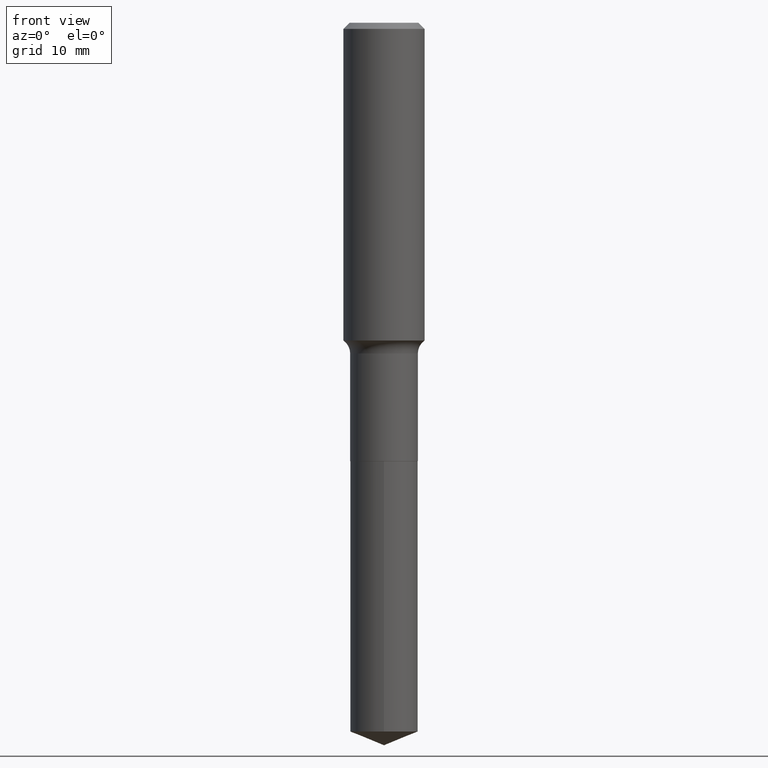
[diagram: clean part render]
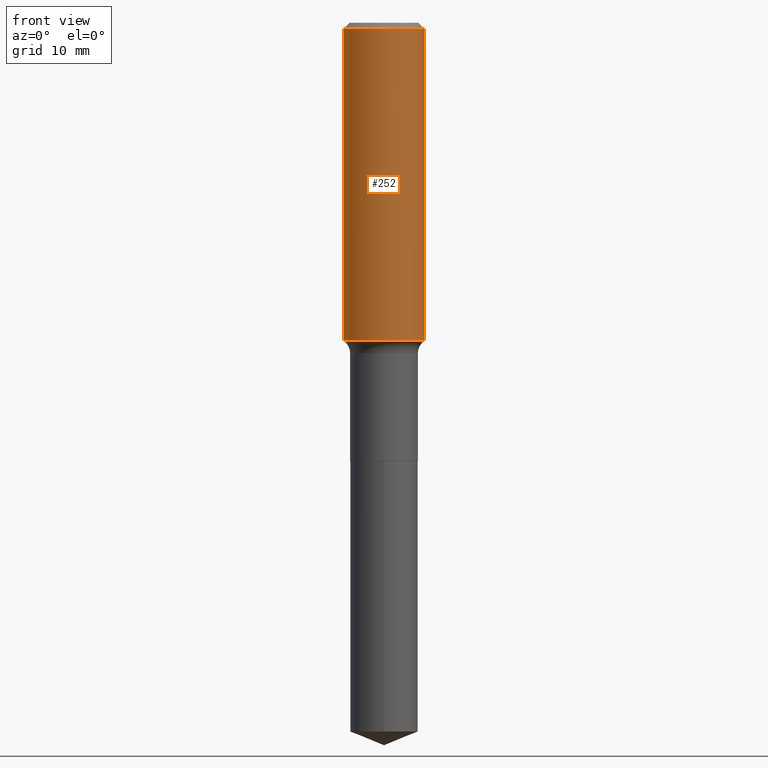
[diagram: same view with one face highlighted and labeled with its STEP entity id]
A machine part, front view. The second image highlights one B-rep face of the part: STEP entity #252.
In plain terms, the highlighted cylindrical surface (partial cylindrical patch) has radius 5 mm, axis along (-0, 0, 1).
Its self-contained STEP definition (entity closure, byte-faithful):
#18 = DIRECTION ( 'NONE',  ( 1.000000000000000000, -6.982962677686266711E-15, 0.000000000000000000 ) ) ;
#57 = DIRECTION ( 'NONE',  ( -2.445468806185136877E-29, 3.491481338843145188E-15, 1.000000000000000000 ) ) ;
#59 = EDGE_CURVE ( 'NONE', #244, #192, #237, .T. ) ;
#94 = CARTESIAN_POINT ( 'NONE',  ( -0.1968500000000001082, 1.398703375343757985E-15, -9.682923725166787881E-30 ) ) ;
#107 = EDGE_CURVE ( 'NONE', #437, #172, #347, .T. ) ;
#119 = CARTESIAN_POINT ( 'NONE',  ( 0.000000000000000000, 0.000000000000000000, 0.000000000000000000 ) ) ;
#142 = AXIS2_PLACEMENT_3D ( 'NONE', #317, #174, #446 ) ;
#170 = EDGE_CURVE ( 'NONE', #192, #172, #490, .T. ) ;
#172 = VERTEX_POINT ( 'NONE', #374 ) ;
#174 = DIRECTION ( 'NONE',  ( -2.445468806185136597E-29, 3.491481338843145583E-15, 1.000000000000000000 ) ) ;
#181 = CARTESIAN_POINT ( 'NONE',  ( -0.1968500000000000527, -1.342561542734275109E-15, -0.02952750000000021330 ) ) ;
#192 = VERTEX_POINT ( 'NONE', #459 ) ;
#209 = CYLINDRICAL_SURFACE ( 'NONE', #337, 0.1968500000000001082 ) ;
#216 = EDGE_LOOP ( 'NONE', ( #423, #475, #483, #352 ) ) ;
#237 = CIRCLE ( 'NONE', #357, 0.1968500000000001915 ) ;
#243 = DIRECTION ( 'NONE',  ( 1.000000000000000000, -6.982962677686266711E-15, 4.876176775795935793E-29 ) ) ;
#244 = VERTEX_POINT ( 'NONE', #299 ) ;
#252 = ADVANCED_FACE ( 'NONE', ( #470 ), #209, .T. ) ;
#272 = DIRECTION ( 'NONE',  ( -2.445468806185136597E-29, 3.491481338843145583E-15, 1.000000000000000000 ) ) ;
#275 = LINE ( 'NONE', #94, #432 ) ;
#299 = CARTESIAN_POINT ( 'NONE',  ( -0.1968500000000001915, -3.980731745579616320E-15, -1.540731454318978955 ) ) ;
#317 = CARTESIAN_POINT ( 'NONE',  ( 7.220858017463213864E-31, -1.030947152326917226E-16, -0.02952750000000021330 ) ) ;
#324 = CARTESIAN_POINT ( 'NONE',  ( 0.1968500000000001082, -1.374596203102542397E-15, 9.598753983154305062E-30 ) ) ;
#337 = AXIS2_PLACEMENT_3D ( 'NONE', #119, #272, #243 ) ;
#347 = CIRCLE ( 'NONE', #142, 0.1968500000000000527 ) ;
#352 = ORIENTED_EDGE ( 'NONE', *, *, #107, .F. ) ;
#354 = DIRECTION ( 'NONE',  ( -2.445468806185136597E-29, 3.491481338843145583E-15, 1.000000000000000000 ) ) ;
#357 = AXIS2_PLACEMENT_3D ( 'NONE', #473, #354, #18 ) ;
#374 = CARTESIAN_POINT ( 'NONE',  ( 0.1968500000000000527, -1.477690918335233688E-15, -0.02952750000000021330 ) ) ;
#423 = ORIENTED_EDGE ( 'NONE', *, *, #486, .F. ) ;
#432 = VECTOR ( 'NONE', #57, 39.37007874015748143 ) ;
#437 = VERTEX_POINT ( 'NONE', #181 ) ;
#446 = DIRECTION ( 'NONE',  ( 1.000000000000000000, -6.982962677686266711E-15, 0.000000000000000000 ) ) ;
#454 = DIRECTION ( 'NONE',  ( -2.445468806185136877E-29, 3.491481338843145188E-15, 1.000000000000000000 ) ) ;
#459 = CARTESIAN_POINT ( 'NONE',  ( 0.1968500000000001915, -6.754031324025918083E-15, -1.540731454318978955 ) ) ;
#470 = FACE_OUTER_BOUND ( 'NONE', #216, .T. ) ;
#473 = CARTESIAN_POINT ( 'NONE',  ( 3.767810710245322715E-29, -5.379435120923374897E-15, -1.540731454318978955 ) ) ;
#475 = ORIENTED_EDGE ( 'NONE', *, *, #59, .T. ) ;
#483 = ORIENTED_EDGE ( 'NONE', *, *, #170, .T. ) ;
#484 = VECTOR ( 'NONE', #454, 39.37007874015748143 ) ;
#486 = EDGE_CURVE ( 'NONE', #244, #437, #275, .T. ) ;
#490 = LINE ( 'NONE', #324, #484 ) ;